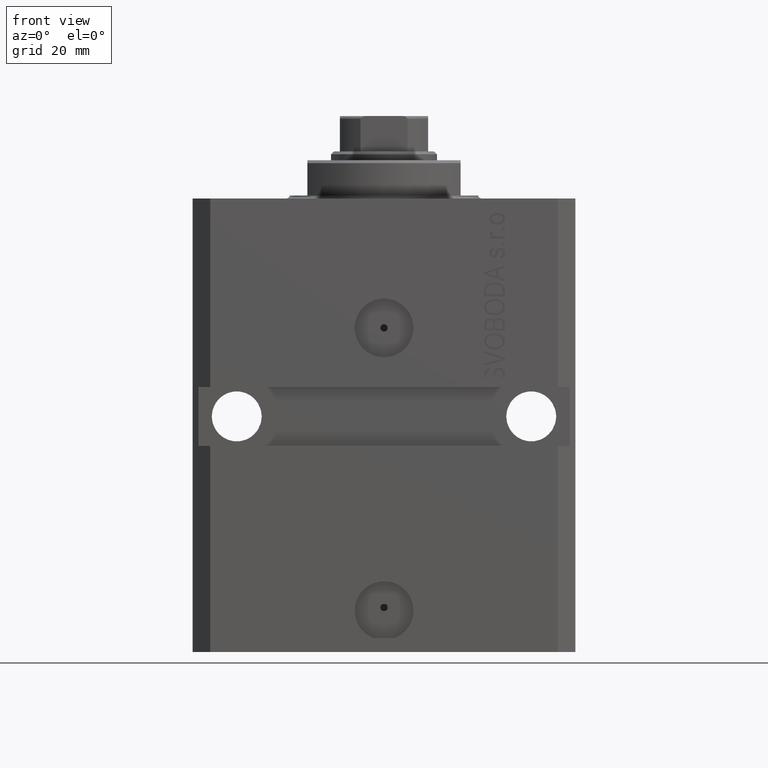
[diagram: clean part render]
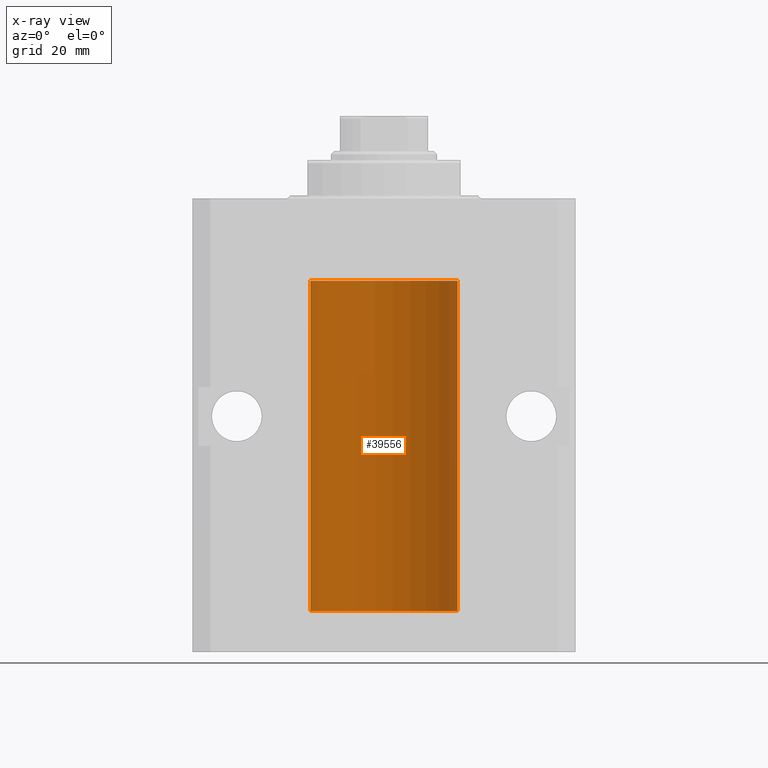
[diagram: x-ray — body ghosted, one internal face saturated and labeled with its STEP entity id]
A machine part, front view, then the same camera in x-ray: the body is ghosted and one INTERNAL B-rep face — a face not visible from any outside direction — is saturated and labeled: STEP entity #39556.
In plain terms, the highlighted cylindrical surface (partial cylindrical patch) has radius 12.5 mm, axis along (0, 0, 1).
Its self-contained STEP definition (entity closure, byte-faithful):
#71 = B_SPLINE_CURVE_WITH_KNOTS ( 'NONE', 3,
 ( #6450, #10740, #17892, #31961, #28144, #21459, #35757, #3091, #21684, #46279, #20990, #32647, #39577, #20766 ),
 .UNSPECIFIED., .F., .F.,
 ( 4, 2, 2, 2, 2, 2, 4 ),
 ( 3.492495172846855184E-18, 0.0002442924852390798859, 0.0004885849704781563023, 0.0009771699409563386254, 0.001221462426195450658, 0.001465754911434562473, 0.001954339881912786538 ),
 .UNSPECIFIED. ) ;
#410 = CARTESIAN_POINT ( 'NONE',  ( -12.50000000000000000, 1.530808498934191521E-15, -13.99999999999999822 ) ) ;
#709 = CARTESIAN_POINT ( 'NONE',  ( -12.49422197749724006, 0.3843754434364375916, -21.50047099568095277 ) ) ;
#941 = CARTESIAN_POINT ( 'NONE',  ( -12.49011732893843529, 0.5003763274120274218, -22.38348111289287701 ) ) ;
#2141 = EDGE_LOOP ( 'NONE', ( #19998, #7769, #7415, #20088, #9135, #32652, #34922, #13726 ) ) ;
#2387 = VERTEX_POINT ( 'NONE', #42246 ) ;
#3091 = CARTESIAN_POINT ( 'NONE',  ( -12.48436376893640265, 0.6250290278979918623, -65.08132082824472775 ) ) ;
#3939 = CARTESIAN_POINT ( 'NONE',  ( -12.50000000000000000, 1.530808498934191521E-15, -70.09999999999999432 ) ) ;
#4688 = DIRECTION ( 'NONE',  ( 1.000000000000000000, 0.000000000000000000, 0.000000000000000000 ) ) ;
#4761 = CARTESIAN_POINT ( 'NONE',  ( -12.48809959379011403, 0.5462151254764975317, -22.31461370481611795 ) ) ;
#4767 = DIRECTION ( 'NONE',  ( 1.000000000000000000, 0.000000000000000000, 0.000000000000000000 ) ) ;
#4826 = DIRECTION ( 'NONE',  ( 1.000000000000000000, 0.000000000000000000, 0.000000000000000000 ) ) ;
#4934 = CARTESIAN_POINT ( 'NONE',  ( -12.50000000000017941, 3.883381774819353300E-13, -65.62500000000359535 ) ) ;
#5468 = CARTESIAN_POINT ( 'NONE',  ( -12.49915784441386890, 0.1636601911727947889, -21.39126818989430490 ) ) ;
#5668 = AXIS2_PLACEMENT_3D ( 'NONE', #15749, #22663, #4767 ) ;
#5723 = CIRCLE ( 'NONE', #32392, 12.50000000000000000 ) ;
#6393 = EDGE_CURVE ( 'NONE', #40739, #30942, #71, .T. ) ;
#6450 = CARTESIAN_POINT ( 'NONE',  ( -12.50000000000000000, -1.053276923642966949E-14, -64.37500000000000000 ) ) ;
#7387 = CARTESIAN_POINT ( 'NONE',  ( -12.50000000000000000, -2.089494013101375120E-17, -21.37499999999999645 ) ) ;
#7415 = ORIENTED_EDGE ( 'NONE', *, *, #21003, .T. ) ;
#7769 = ORIENTED_EDGE ( 'NONE', *, *, #11406, .F. ) ;
#7801 = CARTESIAN_POINT ( 'NONE',  ( -12.50000000000000000, -1.053276923642966949E-14, -64.37500000000000000 ) ) ;
#8437 = VECTOR ( 'NONE', #13853, 1000.000000000000000 ) ;
#8591 = CARTESIAN_POINT ( 'NONE',  ( -12.50000000000000000, 1.530808498934191521E-15, -70.09999999999999432 ) ) ;
#9067 = CARTESIAN_POINT ( 'NONE',  ( -12.50000000000000000, 0.08260426088729219685, -21.37500000000000000 ) ) ;
#9135 = ORIENTED_EDGE ( 'NONE', *, *, #31208, .F. ) ;
#9646 = CIRCLE ( 'NONE', #40085, 12.50000000000000000 ) ;
#10378 = CARTESIAN_POINT ( 'NONE',  ( 12.50000000000000000, 0.000000000000000000, -13.99999999999999822 ) ) ;
#10740 = CARTESIAN_POINT ( 'NONE',  ( -12.49999999999999645, 0.08260426088728485550, -64.37499999999998579 ) ) ;
#11406 = EDGE_CURVE ( 'NONE', #2387, #17940, #5723, .T. ) ;
#11688 = CARTESIAN_POINT ( 'NONE',  ( -12.48436376893640443, 0.6250290278979917513, -22.08132082824473486 ) ) ;
#12065 = DIRECTION ( 'NONE',  ( -0.000000000000000000, -0.000000000000000000, 1.000000000000000000 ) ) ;
#12370 = VERTEX_POINT ( 'NONE', #7387 ) ;
#13726 = ORIENTED_EDGE ( 'NONE', *, *, #6393, .T. ) ;
#13853 = DIRECTION ( 'NONE',  ( -0.000000000000000000, -0.000000000000000000, 1.000000000000000000 ) ) ;
#14638 = CARTESIAN_POINT ( 'NONE',  ( 0.000000000000000000, 0.000000000000000000, -13.99999999999999822 ) ) ;
#15272 = CARTESIAN_POINT ( 'NONE',  ( -12.48810268015257563, 0.5573155909661349217, -21.67347410093867666 ) ) ;
#15507 = CARTESIAN_POINT ( 'NONE',  ( -12.49631005746706336, 0.3253680783018528255, -22.55856740465392463 ) ) ;
#15599 = CARTESIAN_POINT ( 'NONE',  ( -12.50000000000017941, 3.883381646606358354E-13, -22.62500000000358824 ) ) ;
#15674 = EDGE_CURVE ( 'NONE', #44849, #36804, #9646, .T. ) ;
#15749 = CARTESIAN_POINT ( 'NONE',  ( 0.000000000000000000, 0.000000000000000000, -70.09999999999999432 ) ) ;
#15909 = DIRECTION ( 'NONE',  ( 0.000000000000000000, 0.000000000000000000, 1.000000000000000000 ) ) ;
#16224 = DIRECTION ( 'NONE',  ( -0.000000000000000000, -0.000000000000000000, 1.000000000000000000 ) ) ;
#17449 = VERTEX_POINT ( 'NONE', #15599 ) ;
#17803 = CARTESIAN_POINT ( 'NONE',  ( -12.50000000000000000, 1.530808498934191521E-15, -70.09999999999999432 ) ) ;
#17892 = CARTESIAN_POINT ( 'NONE',  ( -12.49915784441386890, 0.1636601911727943726, -64.39126818989430490 ) ) ;
#17940 = VERTEX_POINT ( 'NONE', #17803 ) ;
#17984 = B_SPLINE_CURVE_WITH_KNOTS ( 'NONE', 3,
 ( #38130, #9067, #5468, #33373, #709, #15272, #29791, #11688, #26212, #4761, #941, #15507, #37421, #20253 ),
 .UNSPECIFIED., .F., .F.,
 ( 4, 2, 2, 2, 2, 2, 4 ),
 ( 2.030551168097110502E-20, 0.0002442924852390969078, 0.0004885849704781938157, 0.0009771699409563880650, 0.001221462426195485135, 0.001465754911434582423, 0.001954339881912776130 ),
 .UNSPECIFIED. ) ;
#19091 = VECTOR ( 'NONE', #12065, 1000.000000000000000 ) ;
#19799 = CYLINDRICAL_SURFACE ( 'NONE', #5668, 12.50000000000000000 ) ;
#19998 = ORIENTED_EDGE ( 'NONE', *, *, #39592, .F. ) ;
#20088 = ORIENTED_EDGE ( 'NONE', *, *, #15674, .T. ) ;
#20253 = CARTESIAN_POINT ( 'NONE',  ( -12.50000000000017941, 3.883381646606358354E-13, -22.62500000000358824 ) ) ;
#20766 = CARTESIAN_POINT ( 'NONE',  ( -12.50000000000017941, 3.883381774819353300E-13, -65.62500000000359535 ) ) ;
#20990 = CARTESIAN_POINT ( 'NONE',  ( -12.49011732893843885, 0.5003763274120245352, -65.38348111289289477 ) ) ;
#21003 = EDGE_CURVE ( 'NONE', #2387, #44849, #30175, .T. ) ;
#21224 = CARTESIAN_POINT ( 'NONE',  ( -12.50000000000000000, 1.530808498934191521E-15, -70.09999999999999432 ) ) ;
#21459 = CARTESIAN_POINT ( 'NONE',  ( -12.48810268015257741, 0.5573155909661293705, -64.67347410093867666 ) ) ;
#21684 = CARTESIAN_POINT ( 'NONE',  ( -12.48520330846398174, 0.6088355886774118320, -65.16325431852561678 ) ) ;
#22663 = DIRECTION ( 'NONE',  ( -0.000000000000000000, -0.000000000000000000, 1.000000000000000000 ) ) ;
#26139 = CARTESIAN_POINT ( 'NONE',  ( 0.000000000000000000, 0.000000000000000000, -70.09999999999999432 ) ) ;
#26212 = CARTESIAN_POINT ( 'NONE',  ( -12.48520330846397819, 0.6088355886774127201, -22.16325431852561323 ) ) ;
#28144 = CARTESIAN_POINT ( 'NONE',  ( -12.49422197749724361, 0.3843754434364307082, -64.50047099568097053 ) ) ;
#29791 = CARTESIAN_POINT ( 'NONE',  ( -12.48436813453758454, 0.6249418250771192618, -21.83668996798922635 ) ) ;
#30024 = EDGE_CURVE ( 'NONE', #12370, #17449, #17984, .T. ) ;
#30175 = LINE ( 'NONE', #44750, #33310 ) ;
#30269 = LINE ( 'NONE', #8591, #46794 ) ;
#30942 = VERTEX_POINT ( 'NONE', #4934 ) ;
#31208 = EDGE_CURVE ( 'NONE', #12370, #36804, #46879, .T. ) ;
#31961 = CARTESIAN_POINT ( 'NONE',  ( -12.49625855304193500, 0.3150454781038046770, -64.45402800297485157 ) ) ;
#32392 = AXIS2_PLACEMENT_3D ( 'NONE', #26139, #15909, #4688 ) ;
#32647 = CARTESIAN_POINT ( 'NONE',  ( -12.49631005746706514, 0.3253680783018499389, -65.55856740465391397 ) ) ;
#32652 = ORIENTED_EDGE ( 'NONE', *, *, #30024, .T. ) ;
#32677 = EDGE_CURVE ( 'NONE', #40739, #17449, #36444, .T. ) ;
#33310 = VECTOR ( 'NONE', #44506, 1000.000000000000000 ) ;
#33373 = CARTESIAN_POINT ( 'NONE',  ( -12.49625855304193678, 0.3150454781038042329, -21.45402800297484802 ) ) ;
#33841 = FACE_OUTER_BOUND ( 'NONE', #2141, .T. ) ;
#34922 = ORIENTED_EDGE ( 'NONE', *, *, #32677, .F. ) ;
#35757 = CARTESIAN_POINT ( 'NONE',  ( -12.48436813453758809, 0.6249418250771181516, -64.83668996798922990 ) ) ;
#36444 = LINE ( 'NONE', #21224, #8437 ) ;
#36804 = VERTEX_POINT ( 'NONE', #410 ) ;
#37421 = CARTESIAN_POINT ( 'NONE',  ( -12.49999999999999289, 0.1631761135151241215, -22.62499999999984013 ) ) ;
#38130 = CARTESIAN_POINT ( 'NONE',  ( -12.50000000000000000, -2.089494013101375120E-17, -21.37499999999999645 ) ) ;
#39556 = ADVANCED_FACE ( 'NONE', ( #33841 ), #19799, .F. ) ;
#39577 = CARTESIAN_POINT ( 'NONE',  ( -12.49999999999999822, 0.1631761135151225950, -65.62499999999985789 ) ) ;
#39592 = EDGE_CURVE ( 'NONE', #17940, #30942, #30269, .T. ) ;
#40085 = AXIS2_PLACEMENT_3D ( 'NONE', #14638, #41307, #4826 ) ;
#40739 = VERTEX_POINT ( 'NONE', #7801 ) ;
#41307 = DIRECTION ( 'NONE',  ( 0.000000000000000000, 0.000000000000000000, 1.000000000000000000 ) ) ;
#42246 = CARTESIAN_POINT ( 'NONE',  ( 12.50000000000000000, 0.000000000000000000, -70.09999999999999432 ) ) ;
#44506 = DIRECTION ( 'NONE',  ( -0.000000000000000000, -0.000000000000000000, 1.000000000000000000 ) ) ;
#44750 = CARTESIAN_POINT ( 'NONE',  ( 12.50000000000000000, 0.000000000000000000, -70.09999999999999432 ) ) ;
#44849 = VERTEX_POINT ( 'NONE', #10378 ) ;
#46279 = CARTESIAN_POINT ( 'NONE',  ( -12.48809959379011580, 0.5462151254764966435, -65.31461370481613926 ) ) ;
#46794 = VECTOR ( 'NONE', #16224, 1000.000000000000000 ) ;
#46879 = LINE ( 'NONE', #3939, #19091 ) ;